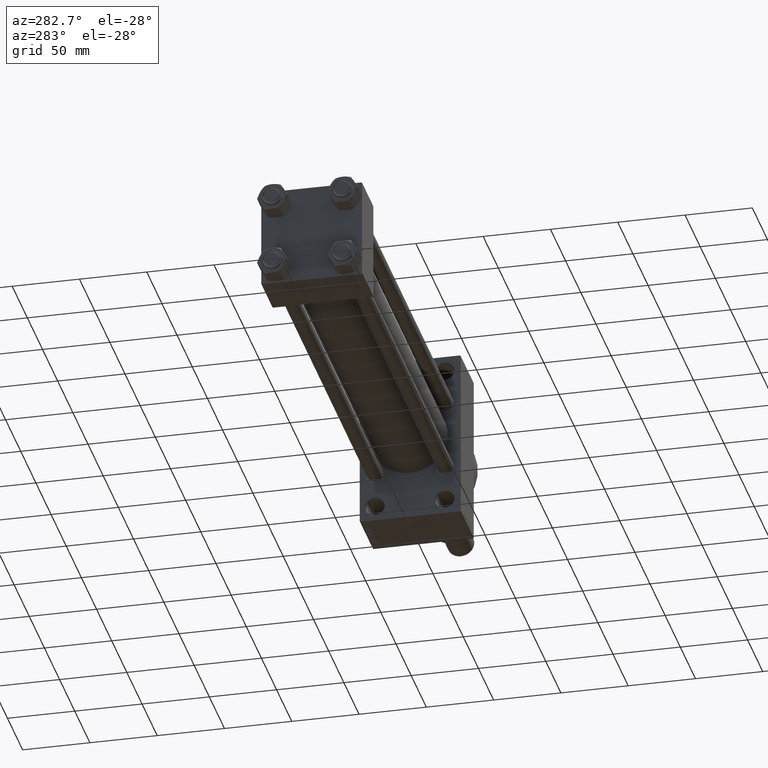
[diagram: clean part render]
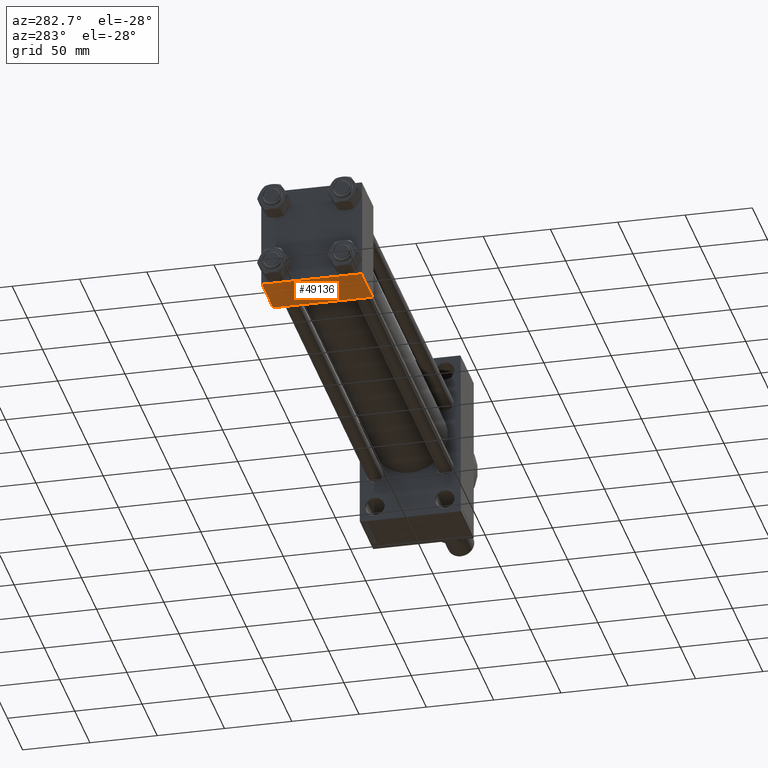
[diagram: same view with one face highlighted and labeled with its STEP entity id]
A machine part, auxiliary view. The second image highlights one B-rep face of the part: STEP entity #49136.
In plain terms, the highlighted planar face has unit normal (0, 0, -1).
Its self-contained STEP definition (entity closure, byte-faithful):
#836 = VERTEX_POINT ( 'NONE', #14522 ) ;
#1419 = DIRECTION ( 'NONE',  ( 0.000000000000000000, -1.000000000000000000, -9.251858538542972814E-17 ) ) ;
#1439 = CARTESIAN_POINT ( 'NONE',  ( 0.000000000000000000, -37.00000000000002132, -37.50000000000000711 ) ) ;
#1496 = DIRECTION ( 'NONE',  ( 0.000000000000000000, 1.000000000000000000, 9.251858538542972814E-17 ) ) ;
#2675 = ORIENTED_EDGE ( 'NONE', *, *, #16802, .T. ) ;
#3004 = VECTOR ( 'NONE', #31299, 1000.000000000000000 ) ;
#3113 = VERTEX_POINT ( 'NONE', #45481 ) ;
#3411 = EDGE_LOOP ( 'NONE', ( #18556, #25865, #2675, #38802 ) ) ;
#7444 = DIRECTION ( 'NONE',  ( -1.000000000000000000, 0.000000000000000000, 0.000000000000000000 ) ) ;
#8991 = EDGE_CURVE ( 'NONE', #3113, #43316, #15855, .T. ) ;
#9046 = EDGE_CURVE ( 'NONE', #3113, #12116, #24678, .T. ) ;
#9616 = CARTESIAN_POINT ( 'NONE',  ( 37.00000000000000000, 37.49999999999999289, -37.50000000000000000 ) ) ;
#12054 = CARTESIAN_POINT ( 'NONE',  ( 37.00000000000000000, 36.99999999999997868, -37.50000000000000000 ) ) ;
#12116 = VERTEX_POINT ( 'NONE', #1439 ) ;
#14522 = CARTESIAN_POINT ( 'NONE',  ( 37.00000000000000000, -37.00000000000002132, -37.50000000000000711 ) ) ;
#15855 = LINE ( 'NONE', #12054, #3004 ) ;
#16802 = EDGE_CURVE ( 'NONE', #43316, #836, #23984, .T. ) ;
#16946 = FACE_OUTER_BOUND ( 'NONE', #3411, .T. ) ;
#17071 = DIRECTION ( 'NONE',  ( 0.000000000000000000, -1.000000000000000000, -9.251858538542972814E-17 ) ) ;
#17190 = PLANE ( 'NONE',  #31099 ) ;
#18556 = ORIENTED_EDGE ( 'NONE', *, *, #9046, .F. ) ;
#18721 = CARTESIAN_POINT ( 'NONE',  ( 37.00000000000000000, 36.99999999999997868, -37.50000000000000000 ) ) ;
#23984 = LINE ( 'NONE', #28514, #36799 ) ;
#24678 = LINE ( 'NONE', #44392, #28878 ) ;
#25865 = ORIENTED_EDGE ( 'NONE', *, *, #8991, .T. ) ;
#26336 = EDGE_CURVE ( 'NONE', #836, #12116, #34270, .T. ) ;
#28514 = CARTESIAN_POINT ( 'NONE',  ( 37.00000000000000000, 37.49999999999999289, -37.50000000000000000 ) ) ;
#28878 = VECTOR ( 'NONE', #17071, 1000.000000000000000 ) ;
#31099 = AXIS2_PLACEMENT_3D ( 'NONE', #9616, #44256, #1496 ) ;
#31299 = DIRECTION ( 'NONE',  ( 1.000000000000000000, 0.000000000000000000, 0.000000000000000000 ) ) ;
#34270 = LINE ( 'NONE', #42593, #42683 ) ;
#36799 = VECTOR ( 'NONE', #1419, 1000.000000000000000 ) ;
#38802 = ORIENTED_EDGE ( 'NONE', *, *, #26336, .T. ) ;
#42593 = CARTESIAN_POINT ( 'NONE',  ( 0.000000000000000000, -37.00000000000002132, -37.50000000000000711 ) ) ;
#42683 = VECTOR ( 'NONE', #7444, 1000.000000000000000 ) ;
#43316 = VERTEX_POINT ( 'NONE', #18721 ) ;
#44256 = DIRECTION ( 'NONE',  ( 0.000000000000000000, 9.251858538542972814E-17, -1.000000000000000000 ) ) ;
#44392 = CARTESIAN_POINT ( 'NONE',  ( 0.000000000000000000, 37.49999999999999289, -37.50000000000000000 ) ) ;
#45481 = CARTESIAN_POINT ( 'NONE',  ( 0.000000000000000000, 36.99999999999997868, -37.50000000000000000 ) ) ;
#49136 = ADVANCED_FACE ( 'NONE', ( #16946 ), #17190, .T. ) ;